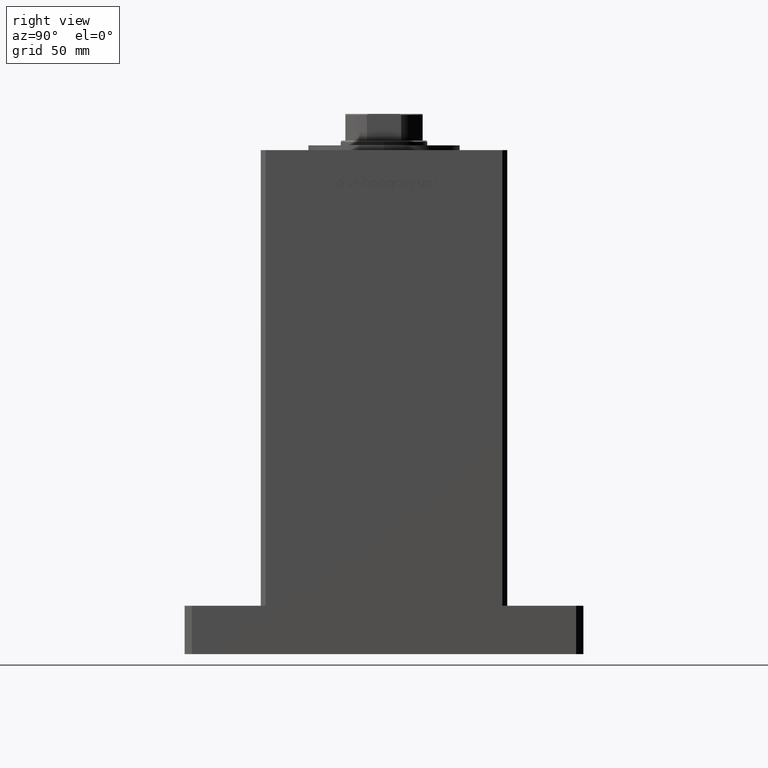
[diagram: clean part render]
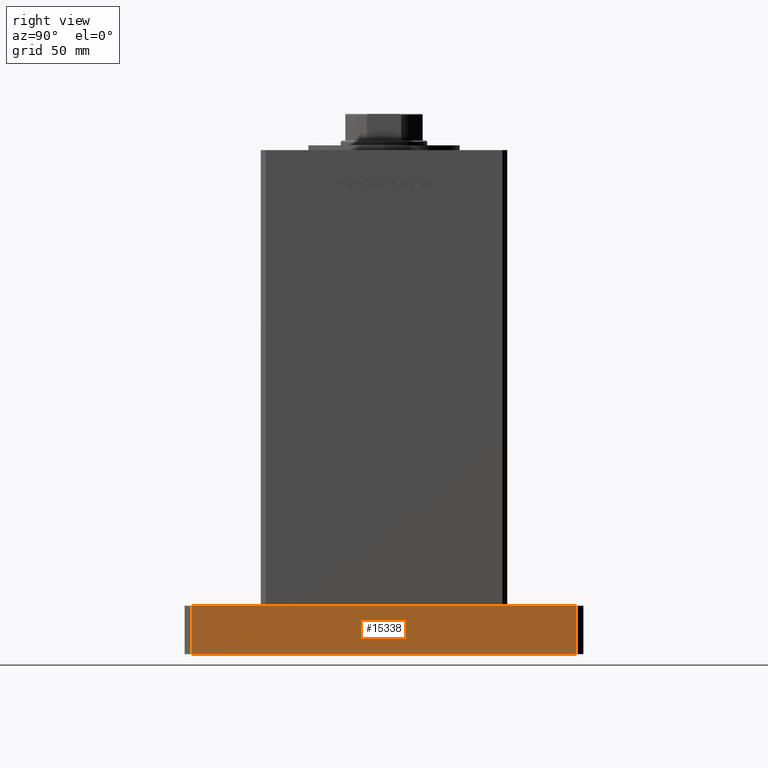
[diagram: same view with one face highlighted and labeled with its STEP entity id]
A machine part, right view. The second image highlights one B-rep face of the part: STEP entity #15338.
In plain terms, the highlighted planar face has unit normal (-1, 0, 0).
Its self-contained STEP definition (entity closure, byte-faithful):
#2238 = CARTESIAN_POINT ( 'NONE',  ( 60.00000000000000000, -79.49999999999990052, 20.00000000000000000 ) ) ;
#2775 = DIRECTION ( 'NONE',  ( -4.364084216293856438E-17, -1.000000000000000000, 0.000000000000000000 ) ) ;
#4352 = EDGE_CURVE ( 'NONE', #38846, #33099, #31338, .T. ) ;
#4360 = CARTESIAN_POINT ( 'NONE',  ( 60.00000000000000000, -79.49999999999990052, 20.00000000000000000 ) ) ;
#5115 = CARTESIAN_POINT ( 'NONE',  ( 60.00000000000000711, 79.50000000000001421, 0.000000000000000000 ) ) ;
#5282 = VECTOR ( 'NONE', #45821, 1000.000000000000000 ) ;
#5896 = ORIENTED_EDGE ( 'NONE', *, *, #4352, .F. ) ;
#11143 = CARTESIAN_POINT ( 'NONE',  ( 60.00000000000000000, -79.49999999999990052, 0.000000000000000000 ) ) ;
#11370 = ORIENTED_EDGE ( 'NONE', *, *, #14439, .T. ) ;
#12122 = VERTEX_POINT ( 'NONE', #35629 ) ;
#14127 = EDGE_LOOP ( 'NONE', ( #11370, #5896, #43123, #20601 ) ) ;
#14439 = EDGE_CURVE ( 'NONE', #20487, #33099, #50398, .T. ) ;
#14443 = CARTESIAN_POINT ( 'NONE',  ( 60.00000000000000711, 79.50000000000001421, 20.00000000000000000 ) ) ;
#15338 = ADVANCED_FACE ( 'NONE', ( #39718 ), #23279, .F. ) ;
#16251 = DIRECTION ( 'NONE',  ( 4.364084216293856438E-17, 1.000000000000000000, 0.000000000000000000 ) ) ;
#18125 = DIRECTION ( 'NONE',  ( -0.000000000000000000, -0.000000000000000000, -1.000000000000000000 ) ) ;
#18783 = EDGE_CURVE ( 'NONE', #12122, #20487, #24417, .T. ) ;
#20487 = VERTEX_POINT ( 'NONE', #11143 ) ;
#20601 = ORIENTED_EDGE ( 'NONE', *, *, #18783, .T. ) ;
#22168 = CARTESIAN_POINT ( 'NONE',  ( 60.00000000000000711, 79.50000000000001421, 20.00000000000000000 ) ) ;
#23279 = PLANE ( 'NONE',  #32023 ) ;
#24417 = LINE ( 'NONE', #36813, #44010 ) ;
#29396 = CARTESIAN_POINT ( 'NONE',  ( 60.00000000000000000, -79.49999999999990052, 0.000000000000000000 ) ) ;
#31338 = LINE ( 'NONE', #22168, #34243 ) ;
#32023 = AXIS2_PLACEMENT_3D ( 'NONE', #2238, #36213, #2775 ) ;
#33099 = VERTEX_POINT ( 'NONE', #5115 ) ;
#34243 = VECTOR ( 'NONE', #18125, 1000.000000000000000 ) ;
#35629 = CARTESIAN_POINT ( 'NONE',  ( 60.00000000000000000, -79.49999999999990052, 20.00000000000000000 ) ) ;
#36213 = DIRECTION ( 'NONE',  ( -1.000000000000000000, 4.364084216293856438E-17, 0.000000000000000000 ) ) ;
#36813 = CARTESIAN_POINT ( 'NONE',  ( 60.00000000000000000, -79.49999999999990052, 20.00000000000000000 ) ) ;
#38846 = VERTEX_POINT ( 'NONE', #14443 ) ;
#39718 = FACE_OUTER_BOUND ( 'NONE', #14127, .T. ) ;
#43123 = ORIENTED_EDGE ( 'NONE', *, *, #51382, .F. ) ;
#44010 = VECTOR ( 'NONE', #49459, 1000.000000000000000 ) ;
#45403 = VECTOR ( 'NONE', #16251, 1000.000000000000000 ) ;
#45821 = DIRECTION ( 'NONE',  ( 4.364084216293856438E-17, 1.000000000000000000, 0.000000000000000000 ) ) ;
#49459 = DIRECTION ( 'NONE',  ( -0.000000000000000000, -0.000000000000000000, -1.000000000000000000 ) ) ;
#50398 = LINE ( 'NONE', #29396, #5282 ) ;
#51382 = EDGE_CURVE ( 'NONE', #12122, #38846, #53158, .T. ) ;
#53158 = LINE ( 'NONE', #4360, #45403 ) ;